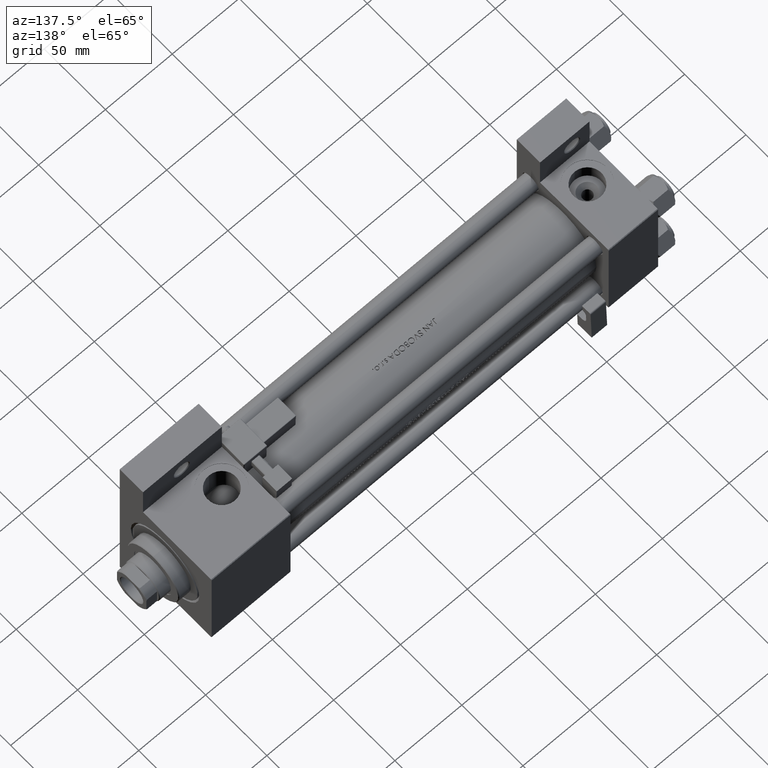
[diagram: clean part render]
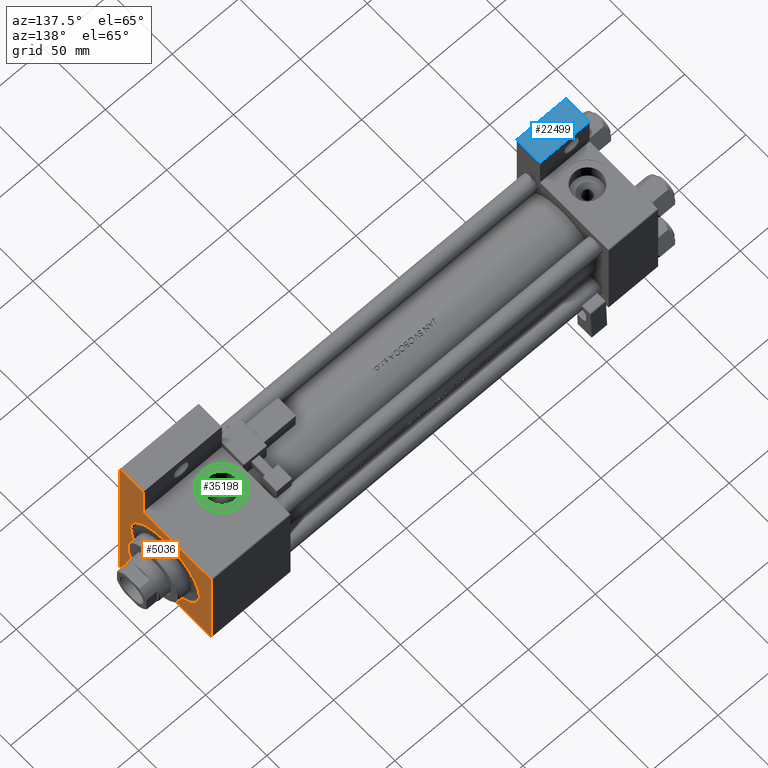
[diagram: same view with three faces highlighted in distinct colors, each labeled with its STEP entity id]
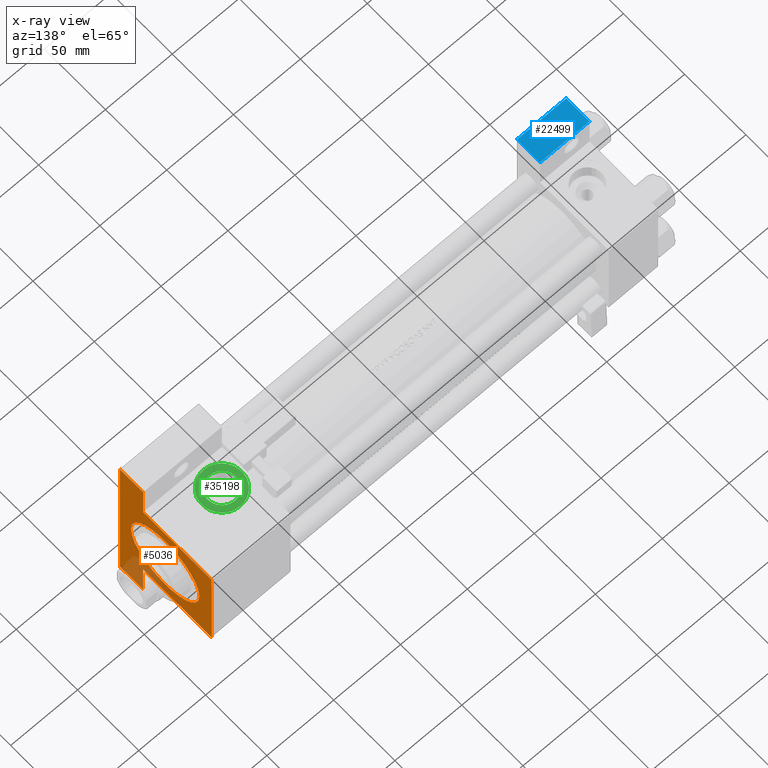
[diagram: x-ray of the same camera — body ghosted, the three highlighted faces saturated]
A machine part, auxiliary view with three faces highlighted in distinct colors.
The next image is the same camera in x-ray (body ghosted, the three faces saturated) — at least one of them is partly hidden behind the body in this view.
Their STEP definitions:

[orange] entity #5036 — the highlighted planar face has unit normal (-1, 0, 0).
#663 = CARTESIAN_POINT ( 'NONE',  ( 333.9999999999999432, -63.50000000000002842, -18.50000000000000000 ) ) ;
#1031 = EDGE_CURVE ( 'NONE', #2543, #21225, #18967, .T. ) ;
#1299 = LINE ( 'NONE', #29011, #38565 ) ;
#2369 = CARTESIAN_POINT ( 'NONE',  ( 333.9999999999999432, 36.99999999999994316, 37.49999999999999289 ) ) ;
#2543 = VERTEX_POINT ( 'NONE', #10500 ) ;
#2662 = VERTEX_POINT ( 'NONE', #28014 ) ;
#2678 = EDGE_CURVE ( 'NONE', #49200, #23754, #17703, .T. ) ;
#2886 = CARTESIAN_POINT ( 'NONE',  ( 333.9999999999999432, -63.50000000000002842, -18.50000000000000000 ) ) ;
#2931 = EDGE_CURVE ( 'NONE', #20203, #23990, #41626, .T. ) ;
#2990 = CARTESIAN_POINT ( 'NONE',  ( 333.9999999999999432, 37.50000000000000000, 37.49999999999999289 ) ) ;
#4249 = ORIENTED_EDGE ( 'NONE', *, *, #2931, .F. ) ;
#5036 = ADVANCED_FACE ( 'NONE', ( #10623, #22626 ), #11130, .F. ) ;
#5141 = LINE ( 'NONE', #28932, #45685 ) ;
#5269 = CARTESIAN_POINT ( 'NONE',  ( 333.9999999999999432, 37.50000000000000000, -37.50000000000000000 ) ) ;
#5780 = DIRECTION ( 'NONE',  ( 0.000000000000000000, -1.000000000000000000, 0.000000000000000000 ) ) ;
#6622 = CARTESIAN_POINT ( 'NONE',  ( 333.9999999999999432, 63.49999999999997158, -18.50000000000000000 ) ) ;
#7428 = DIRECTION ( 'NONE',  ( 0.000000000000000000, 0.000000000000000000, -1.000000000000000000 ) ) ;
#8655 = DIRECTION ( 'NONE',  ( -1.000000000000000000, -0.000000000000000000, 0.000000000000000000 ) ) ;
#10500 = CARTESIAN_POINT ( 'NONE',  ( 333.9999999999999432, 63.49999999999997158, -18.50000000000000000 ) ) ;
#10623 = FACE_BOUND ( 'NONE', #12453, .T. ) ;
#10790 = LINE ( 'NONE', #6622, #22997 ) ;
#11130 = PLANE ( 'NONE',  #18607 ) ;
#12453 = EDGE_LOOP ( 'NONE', ( #45095, #33498 ) ) ;
#15003 = LINE ( 'NONE', #2990, #30635 ) ;
#16727 = CARTESIAN_POINT ( 'NONE',  ( 333.9999999999999432, -37.50000000000000000, 36.99999999999992184 ) ) ;
#17415 = LINE ( 'NONE', #37831, #37190 ) ;
#17658 = DIRECTION ( 'NONE',  ( 0.000000000000000000, -9.251858538542972814E-17, -1.000000000000000000 ) ) ;
#17666 = VECTOR ( 'NONE', #22694, 1000.000000000000000 ) ;
#17703 = CIRCLE ( 'NONE', #36079, 27.99999999999994316 ) ;
#18607 = AXIS2_PLACEMENT_3D ( 'NONE', #38370, #34927, #50942 ) ;
#18967 = LINE ( 'NONE', #23649, #38530 ) ;
#19077 = LINE ( 'NONE', #2886, #37932 ) ;
#19493 = EDGE_CURVE ( 'NONE', #40893, #23990, #5141, .T. ) ;
#20203 = VERTEX_POINT ( 'NONE', #49780 ) ;
#21225 = VERTEX_POINT ( 'NONE', #21730 ) ;
#21373 = EDGE_CURVE ( 'NONE', #21628, #26796, #1299, .T. ) ;
#21421 = DIRECTION ( 'NONE',  ( 0.000000000000000000, -0.7071067811865474617, 0.7071067811865474617 ) ) ;
#21508 = EDGE_CURVE ( 'NONE', #26796, #48869, #27414, .T. ) ;
#21628 = VERTEX_POINT ( 'NONE', #28953 ) ;
#21730 = CARTESIAN_POINT ( 'NONE',  ( 333.9999999999999432, 37.49999999999993605, -18.50000000000000000 ) ) ;
#22626 = FACE_OUTER_BOUND ( 'NONE', #26254, .T. ) ;
#22694 = DIRECTION ( 'NONE',  ( 0.000000000000000000, -1.000000000000000000, -1.850371707708594316E-16 ) ) ;
#22964 = CARTESIAN_POINT ( 'NONE',  ( 333.9999999999999432, 37.50000000000000000, 37.49999999999999289 ) ) ;
#22997 = VECTOR ( 'NONE', #26730, 1000.000000000000000 ) ;
#23649 = CARTESIAN_POINT ( 'NONE',  ( 333.9999999999999432, 63.49999999999997158, -18.50000000000000000 ) ) ;
#23754 = VERTEX_POINT ( 'NONE', #42670 ) ;
#23920 = ORIENTED_EDGE ( 'NONE', *, *, #21508, .T. ) ;
#23990 = VERTEX_POINT ( 'NONE', #44109 ) ;
#25492 = ORIENTED_EDGE ( 'NONE', *, *, #49475, .T. ) ;
#26254 = EDGE_LOOP ( 'NONE', ( #48343, #43813, #23920, #25492, #31498, #33353, #46202, #4249, #33791, #37986 ) ) ;
#26730 = DIRECTION ( 'NONE',  ( 0.000000000000000000, 0.000000000000000000, -1.000000000000000000 ) ) ;
#26796 = VERTEX_POINT ( 'NONE', #2369 ) ;
#27414 = LINE ( 'NONE', #22964, #17666 ) ;
#28014 = CARTESIAN_POINT ( 'NONE',  ( 333.9999999999999432, -37.50000000000000711, -18.50000000000000355 ) ) ;
#28932 = CARTESIAN_POINT ( 'NONE',  ( 333.9999999999999432, -63.50000000000002842, -18.50000000000000000 ) ) ;
#28953 = CARTESIAN_POINT ( 'NONE',  ( 333.9999999999999432, 37.50000000000000000, 36.99999999999993605 ) ) ;
#29011 = CARTESIAN_POINT ( 'NONE',  ( 333.9999999999999432, 36.99999999999994316, 37.49999999999999289 ) ) ;
#29807 = EDGE_CURVE ( 'NONE', #2662, #40893, #19077, .T. ) ;
#30635 = VECTOR ( 'NONE', #7428, 1000.000000000000000 ) ;
#30734 = DIRECTION ( 'NONE',  ( 0.000000000000000000, -1.000000000000000000, 0.000000000000000000 ) ) ;
#30831 = DIRECTION ( 'NONE',  ( 0.000000000000000000, 0.000000000000000000, 1.000000000000000000 ) ) ;
#31111 = DIRECTION ( 'NONE',  ( -0.000000000000000000, -1.000000000000000000, -0.000000000000000000 ) ) ;
#31498 = ORIENTED_EDGE ( 'NONE', *, *, #34699, .T. ) ;
#31732 = VECTOR ( 'NONE', #32666, 1000.000000000000114 ) ;
#32666 = DIRECTION ( 'NONE',  ( -0.000000000000000000, -0.7071067811865474617, -0.7071067811865474617 ) ) ;
#33353 = ORIENTED_EDGE ( 'NONE', *, *, #29807, .T. ) ;
#33498 = ORIENTED_EDGE ( 'NONE', *, *, #2678, .T. ) ;
#33766 = EDGE_CURVE ( 'NONE', #2543, #20203, #10790, .T. ) ;
#33791 = ORIENTED_EDGE ( 'NONE', *, *, #33766, .F. ) ;
#34522 = CARTESIAN_POINT ( 'NONE',  ( 333.9999999999999432, -37.50000000000000000, 36.99999999999992184 ) ) ;
#34699 = EDGE_CURVE ( 'NONE', #43306, #2662, #17415, .T. ) ;
#34895 = CIRCLE ( 'NONE', #49186, 27.99999999999994316 ) ;
#34927 = DIRECTION ( 'NONE',  ( -1.000000000000000000, -0.000000000000000000, 0.000000000000000000 ) ) ;
#36079 = AXIS2_PLACEMENT_3D ( 'NONE', #47954, #8655, #36381 ) ;
#36381 = DIRECTION ( 'NONE',  ( 0.000000000000000000, 0.000000000000000000, 1.000000000000000000 ) ) ;
#36743 = CARTESIAN_POINT ( 'NONE',  ( 333.9999999999999432, -36.99999999999994316, 37.49999999999997868 ) ) ;
#37190 = VECTOR ( 'NONE', #17658, 1000.000000000000000 ) ;
#37831 = CARTESIAN_POINT ( 'NONE',  ( 333.9999999999999432, -37.50000000000000000, 37.49999999999997868 ) ) ;
#37932 = VECTOR ( 'NONE', #31111, 1000.000000000000000 ) ;
#37986 = ORIENTED_EDGE ( 'NONE', *, *, #1031, .T. ) ;
#38370 = CARTESIAN_POINT ( 'NONE',  ( 333.9999999999999432, 0.000000000000000000, 0.000000000000000000 ) ) ;
#38530 = VECTOR ( 'NONE', #30734, 1000.000000000000000 ) ;
#38565 = VECTOR ( 'NONE', #21421, 1000.000000000000114 ) ;
#38830 = EDGE_CURVE ( 'NONE', #21628, #21225, #15003, .T. ) ;
#39015 = CARTESIAN_POINT ( 'NONE',  ( 333.9999999999999432, 3.429011037612582176E-15, 27.49999999999993960 ) ) ;
#40582 = EDGE_CURVE ( 'NONE', #23754, #49200, #34895, .T. ) ;
#40893 = VERTEX_POINT ( 'NONE', #663 ) ;
#41626 = LINE ( 'NONE', #5269, #47828 ) ;
#42670 = CARTESIAN_POINT ( 'NONE',  ( 333.9999999999999432, 0.000000000000000000, -28.49999999999994316 ) ) ;
#42903 = CARTESIAN_POINT ( 'NONE',  ( 333.9999999999999432, 0.000000000000000000, -0.5000000000000004441 ) ) ;
#43164 = DIRECTION ( 'NONE',  ( -1.000000000000000000, -0.000000000000000000, 0.000000000000000000 ) ) ;
#43306 = VERTEX_POINT ( 'NONE', #34522 ) ;
#43813 = ORIENTED_EDGE ( 'NONE', *, *, #21373, .T. ) ;
#44109 = CARTESIAN_POINT ( 'NONE',  ( 333.9999999999999432, -63.50000000000002842, -37.50000000000000000 ) ) ;
#44496 = LINE ( 'NONE', #16727, #31732 ) ;
#45095 = ORIENTED_EDGE ( 'NONE', *, *, #40582, .T. ) ;
#45685 = VECTOR ( 'NONE', #48596, 1000.000000000000000 ) ;
#46202 = ORIENTED_EDGE ( 'NONE', *, *, #19493, .T. ) ;
#47828 = VECTOR ( 'NONE', #5780, 1000.000000000000000 ) ;
#47954 = CARTESIAN_POINT ( 'NONE',  ( 333.9999999999999432, 0.000000000000000000, -0.5000000000000004441 ) ) ;
#48343 = ORIENTED_EDGE ( 'NONE', *, *, #38830, .F. ) ;
#48596 = DIRECTION ( 'NONE',  ( 0.000000000000000000, 0.000000000000000000, -1.000000000000000000 ) ) ;
#48869 = VERTEX_POINT ( 'NONE', #36743 ) ;
#49186 = AXIS2_PLACEMENT_3D ( 'NONE', #42903, #43164, #30831 ) ;
#49200 = VERTEX_POINT ( 'NONE', #39015 ) ;
#49475 = EDGE_CURVE ( 'NONE', #48869, #43306, #44496, .T. ) ;
#49780 = CARTESIAN_POINT ( 'NONE',  ( 333.9999999999999432, 63.49999999999997158, -37.50000000000000000 ) ) ;
#50942 = DIRECTION ( 'NONE',  ( 0.000000000000000000, 0.000000000000000000, 1.000000000000000000 ) ) ;

[blue] entity #22499 — the highlighted planar face has unit normal (0, 0, 1).
#2207 = CARTESIAN_POINT ( 'NONE',  ( 3.977209754999747208E-16, -63.50000000000000000, -37.49999999999999289 ) ) ;
#2241 = VERTEX_POINT ( 'NONE', #2207 ) ;
#3535 = VECTOR ( 'NONE', #21202, 1000.000000000000000 ) ;
#3704 = EDGE_CURVE ( 'NONE', #49194, #5387, #14379, .T. ) ;
#5387 = VERTEX_POINT ( 'NONE', #37725 ) ;
#6158 = CARTESIAN_POINT ( 'NONE',  ( 3.977209754999747208E-16, -63.50000000000000000, -18.50000000000000355 ) ) ;
#7947 = ORIENTED_EDGE ( 'NONE', *, *, #36470, .F. ) ;
#10123 = EDGE_CURVE ( 'NONE', #12787, #49194, #26403, .T. ) ;
#10498 = LINE ( 'NONE', #46105, #21104 ) ;
#12787 = VERTEX_POINT ( 'NONE', #6158 ) ;
#12988 = VECTOR ( 'NONE', #38120, 1000.000000000000000 ) ;
#14379 = LINE ( 'NONE', #46353, #3535 ) ;
#15287 = DIRECTION ( 'NONE',  ( 0.000000000000000000, -1.734723475976806848E-16, -1.000000000000000000 ) ) ;
#17698 = ORIENTED_EDGE ( 'NONE', *, *, #3704, .F. ) ;
#18298 = DIRECTION ( 'NONE',  ( 1.000000000000000000, 0.000000000000000000, 0.000000000000000000 ) ) ;
#20669 = ORIENTED_EDGE ( 'NONE', *, *, #24541, .T. ) ;
#21104 = VECTOR ( 'NONE', #43201, 1000.000000000000000 ) ;
#21202 = DIRECTION ( 'NONE',  ( 0.000000000000000000, -1.734723475976806848E-16, -1.000000000000000000 ) ) ;
#22499 = ADVANCED_FACE ( 'NONE', ( #26288 ), #34654, .T. ) ;
#23583 = ORIENTED_EDGE ( 'NONE', *, *, #10123, .F. ) ;
#24541 = EDGE_CURVE ( 'NONE', #12787, #2241, #10498, .T. ) ;
#26143 = CARTESIAN_POINT ( 'NONE',  ( 3.977209754999747208E-16, -63.50000000000000000, -18.50000000000000355 ) ) ;
#26288 = FACE_OUTER_BOUND ( 'NONE', #49823, .T. ) ;
#26403 = LINE ( 'NONE', #26143, #48775 ) ;
#34380 = CARTESIAN_POINT ( 'NONE',  ( 3.977209754999747208E-16, -63.49999999999998579, 26.72167621838007889 ) ) ;
#34414 = LINE ( 'NONE', #45744, #12988 ) ;
#34552 = CARTESIAN_POINT ( 'NONE',  ( 37.00000000000000000, -63.50000000000000000, -18.50000000000000355 ) ) ;
#34654 = PLANE ( 'NONE',  #45314 ) ;
#36470 = EDGE_CURVE ( 'NONE', #5387, #2241, #34414, .T. ) ;
#37725 = CARTESIAN_POINT ( 'NONE',  ( 37.00000000000000000, -63.50000000000000000, -37.49999999999999289 ) ) ;
#38120 = DIRECTION ( 'NONE',  ( -1.000000000000000000, -0.000000000000000000, -0.000000000000000000 ) ) ;
#43201 = DIRECTION ( 'NONE',  ( 0.000000000000000000, -1.734723475976806848E-16, -1.000000000000000000 ) ) ;
#45314 = AXIS2_PLACEMENT_3D ( 'NONE', #34380, #50670, #15287 ) ;
#45744 = CARTESIAN_POINT ( 'NONE',  ( 3.977209754999747208E-16, -63.50000000000000000, -37.49999999999999289 ) ) ;
#46105 = CARTESIAN_POINT ( 'NONE',  ( 3.977209754999747208E-16, -63.49999999999998579, 26.72167621838007889 ) ) ;
#46353 = CARTESIAN_POINT ( 'NONE',  ( 37.00000000000000000, -63.49999999999998579, 26.72167621838007889 ) ) ;
#48775 = VECTOR ( 'NONE', #18298, 1000.000000000000000 ) ;
#49194 = VERTEX_POINT ( 'NONE', #34552 ) ;
#49823 = EDGE_LOOP ( 'NONE', ( #23583, #20669, #7947, #17698 ) ) ;
#50670 = DIRECTION ( 'NONE',  ( 0.000000000000000000, -1.000000000000000000, 1.734723475976806848E-16 ) ) ;

[green] entity #35198 — the highlighted planar face has unit normal (0, -0, 1).
#5219 = PLANE ( 'NONE',  #45602 ) ;
#5912 = DIRECTION ( 'NONE',  ( 0.000000000000000000, 0.000000000000000000, -1.000000000000000000 ) ) ;
#7012 = DIRECTION ( 'NONE',  ( 0.000000000000000000, 0.000000000000000000, -1.000000000000000000 ) ) ;
#7157 = EDGE_LOOP ( 'NONE', ( #47258, #39341 ) ) ;
#7632 = DIRECTION ( 'NONE',  ( 0.000000000000000000, 0.000000000000000000, -1.000000000000000000 ) ) ;
#7900 = CARTESIAN_POINT ( 'NONE',  ( 292.0000000000000000, -37.29999999999999716, 3.486794186713383443E-15 ) ) ;
#8381 = DIRECTION ( 'NONE',  ( 0.000000000000000000, -1.000000000000000000, -8.673617379884036705E-17 ) ) ;
#9833 = CARTESIAN_POINT ( 'NONE',  ( 292.0000000000000000, -37.29999999999999716, 3.486794186713383443E-15 ) ) ;
#10749 = CIRCLE ( 'NONE', #22418, 15.00000000000002487 ) ;
#12272 = DIRECTION ( 'NONE',  ( 0.000000000000000000, -1.000000000000000000, -8.673617379884036705E-17 ) ) ;
#12783 = CARTESIAN_POINT ( 'NONE',  ( 292.0000000000000000, -37.29999999999999716, 3.486794186713383443E-15 ) ) ;
#14116 = EDGE_CURVE ( 'NONE', #41487, #40743, #41368, .T. ) ;
#16257 = VERTEX_POINT ( 'NONE', #42316 ) ;
#16707 = FACE_OUTER_BOUND ( 'NONE', #24654, .T. ) ;
#17203 = CARTESIAN_POINT ( 'NONE',  ( 292.0000000000000000, -37.29999999999999716, -15.00000000000002132 ) ) ;
#22418 = AXIS2_PLACEMENT_3D ( 'NONE', #9833, #25777, #5912 ) ;
#24282 = FACE_BOUND ( 'NONE', #7157, .T. ) ;
#24654 = EDGE_LOOP ( 'NONE', ( #47430, #30386 ) ) ;
#24807 = DIRECTION ( 'NONE',  ( 0.000000000000000000, 8.673617379884036705E-17, -1.000000000000000000 ) ) ;
#25637 = CIRCLE ( 'NONE', #26456, 10.47999999999998622 ) ;
#25777 = DIRECTION ( 'NONE',  ( 0.000000000000000000, -1.000000000000000000, -8.673617379884036705E-17 ) ) ;
#25871 = EDGE_CURVE ( 'NONE', #51481, #16257, #36899, .T. ) ;
#26456 = AXIS2_PLACEMENT_3D ( 'NONE', #28247, #8381, #36620 ) ;
#26847 = CARTESIAN_POINT ( 'NONE',  ( 292.0000000000000000, -37.29999999999999716, 3.486794186713383443E-15 ) ) ;
#28204 = CARTESIAN_POINT ( 'NONE',  ( 292.0000000000000000, -37.29999999999999716, 15.00000000000002842 ) ) ;
#28247 = CARTESIAN_POINT ( 'NONE',  ( 292.0000000000000000, -37.29999999999999716, 3.486794186713383443E-15 ) ) ;
#30386 = ORIENTED_EDGE ( 'NONE', *, *, #14116, .T. ) ;
#35198 = ADVANCED_FACE ( 'NONE', ( #24282, #16707 ), #5219, .T. ) ;
#36328 = AXIS2_PLACEMENT_3D ( 'NONE', #7900, #47184, #7632 ) ;
#36620 = DIRECTION ( 'NONE',  ( 0.000000000000000000, 0.000000000000000000, -1.000000000000000000 ) ) ;
#36899 = CIRCLE ( 'NONE', #41103, 10.47999999999998622 ) ;
#39213 = EDGE_CURVE ( 'NONE', #16257, #51481, #25637, .T. ) ;
#39341 = ORIENTED_EDGE ( 'NONE', *, *, #39213, .F. ) ;
#40743 = VERTEX_POINT ( 'NONE', #17203 ) ;
#41103 = AXIS2_PLACEMENT_3D ( 'NONE', #26847, #42852, #7012 ) ;
#41368 = CIRCLE ( 'NONE', #36328, 15.00000000000002487 ) ;
#41487 = VERTEX_POINT ( 'NONE', #28204 ) ;
#41972 = EDGE_CURVE ( 'NONE', #40743, #41487, #10749, .T. ) ;
#42316 = CARTESIAN_POINT ( 'NONE',  ( 292.0000000000000000, -37.29999999999999716, 10.47999999999998977 ) ) ;
#42852 = DIRECTION ( 'NONE',  ( 0.000000000000000000, -1.000000000000000000, -8.673617379884036705E-17 ) ) ;
#45602 = AXIS2_PLACEMENT_3D ( 'NONE', #12783, #12272, #24807 ) ;
#47069 = CARTESIAN_POINT ( 'NONE',  ( 292.0000000000000000, -37.29999999999999716, -10.47999999999998266 ) ) ;
#47184 = DIRECTION ( 'NONE',  ( 0.000000000000000000, -1.000000000000000000, -8.673617379884036705E-17 ) ) ;
#47258 = ORIENTED_EDGE ( 'NONE', *, *, #25871, .F. ) ;
#47430 = ORIENTED_EDGE ( 'NONE', *, *, #41972, .T. ) ;
#51481 = VERTEX_POINT ( 'NONE', #47069 ) ;